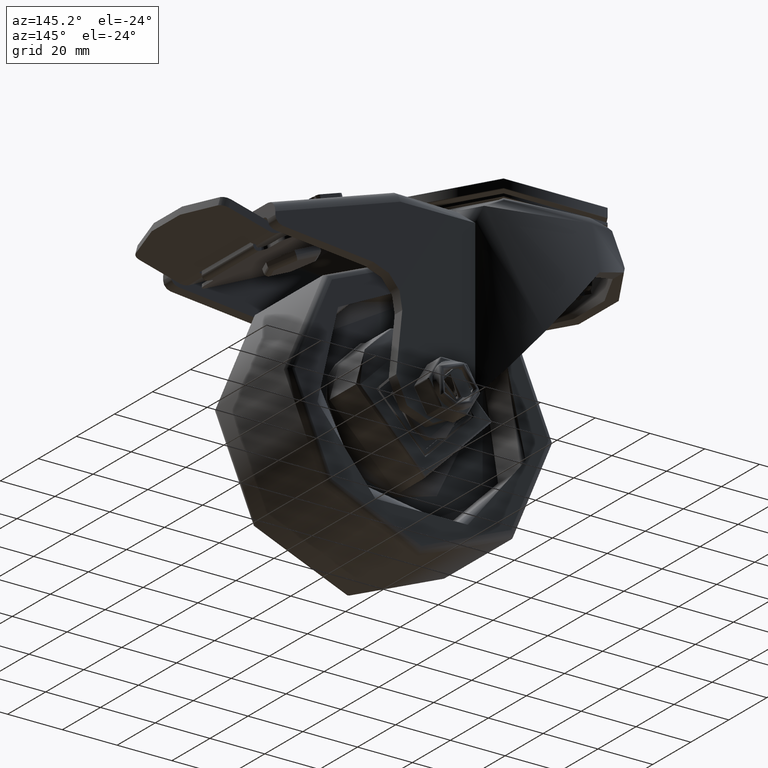
[diagram: clean part render]
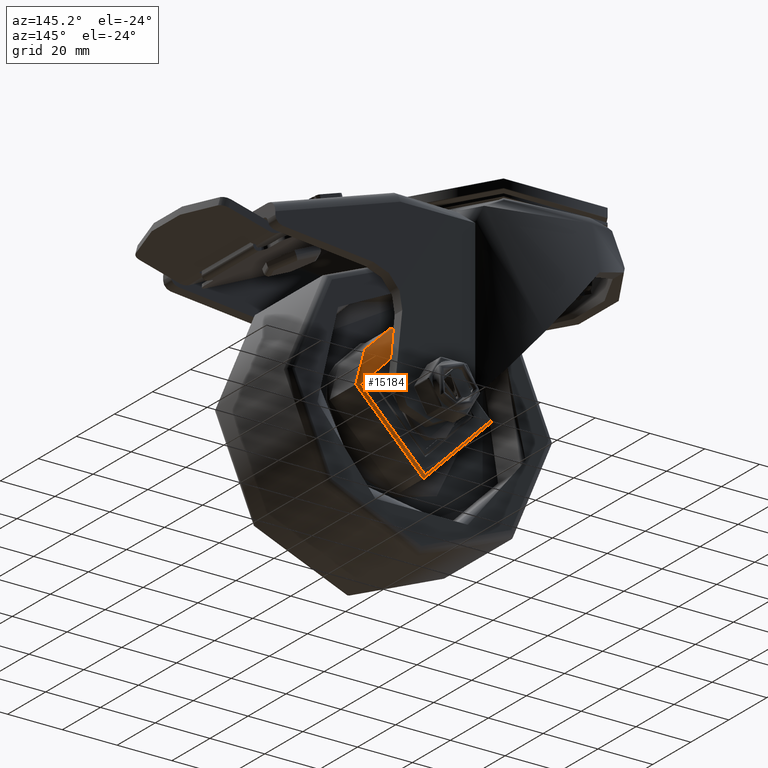
[diagram: same view with one face highlighted and labeled with its STEP entity id]
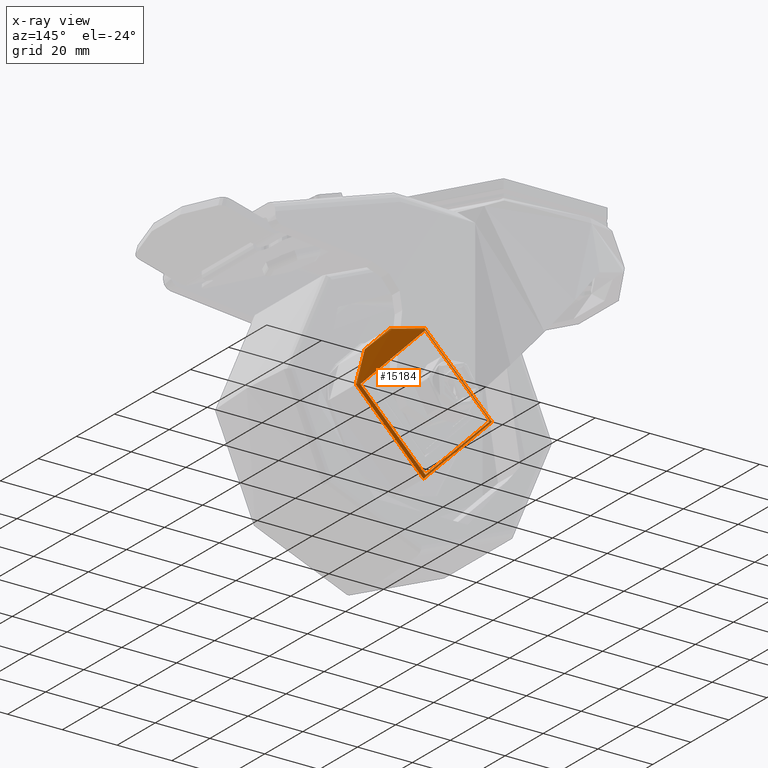
[diagram: x-ray of the same camera — body ghosted, the highlighted face saturated]
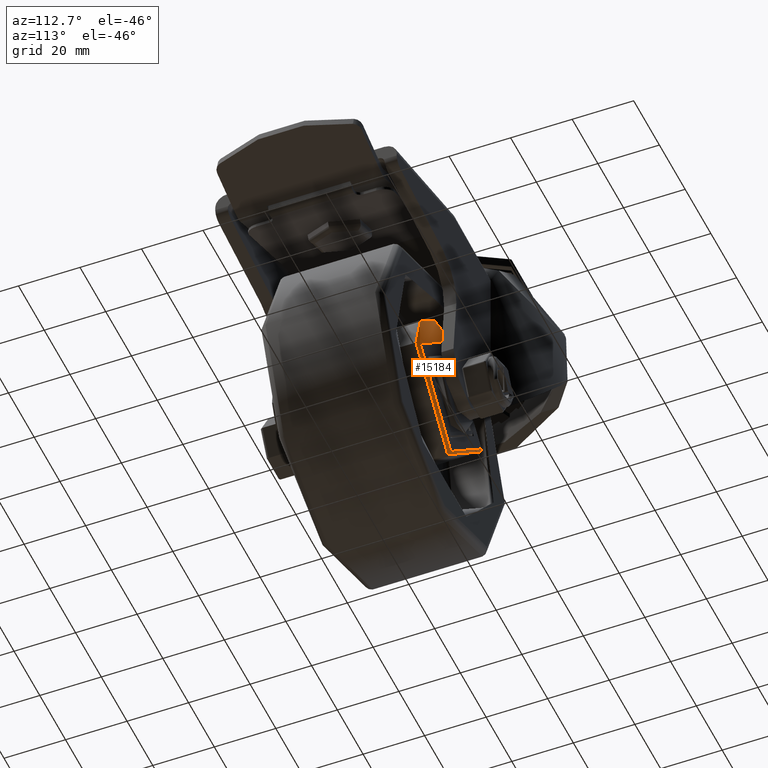
[diagram: same view with one face highlighted and labeled with its STEP entity id]
A machine part, auxiliary view. The second image highlights one B-rep face of the part: STEP entity #15184.
The next image is the same camera in x-ray: the body ghosted, the highlighted face saturated — about 1% of this face is hidden behind the body in this view.
A second angle (auxiliary view) of the same face is appended — the face is thin or edge-on in the first view.
In plain terms, the highlighted toroidal blend (fillet) surface has major radius 23.75 mm and minor (blend) radius 1 mm.
Its self-contained STEP definition (entity closure, byte-faithful):
#1717=TOROIDAL_SURFACE('',#16715,23.75,0.999999999999997);
#2069=FACE_OUTER_BOUND('',#2988,.T.);
#2988=EDGE_LOOP('',(#11980,#11981,#11982,#11983,#11984));
#6134=CIRCLE('',#16716,23.75);
#6135=CIRCLE('',#16717,0.999999999999997);
#6136=CIRCLE('',#16718,24.75);
#6137=CIRCLE('',#16719,24.75);
#7023=VERTEX_POINT('',#24692);
#7024=VERTEX_POINT('',#24694);
#7025=VERTEX_POINT('',#24696);
#8824=EDGE_CURVE('',#7023,#7023,#6134,.T.);
#8825=EDGE_CURVE('',#7023,#7024,#6135,.T.);
#8826=EDGE_CURVE('',#7024,#7025,#6136,.T.);
#8827=EDGE_CURVE('',#7025,#7024,#6137,.T.);
#11980=ORIENTED_EDGE('',*,*,#8824,.F.);
#11981=ORIENTED_EDGE('',*,*,#8825,.T.);
#11982=ORIENTED_EDGE('',*,*,#8826,.T.);
#11983=ORIENTED_EDGE('',*,*,#8827,.T.);
#11984=ORIENTED_EDGE('',*,*,#8825,.F.);
#15184=ADVANCED_FACE('',(#2069),#1717,.T.);
#16715=AXIS2_PLACEMENT_3D('',#24691,#19424,#19425);
#16716=AXIS2_PLACEMENT_3D('',#24693,#19426,#19427);
#16717=AXIS2_PLACEMENT_3D('',#24695,#19428,#19429);
#16718=AXIS2_PLACEMENT_3D('',#24697,#19430,#19431);
#16719=AXIS2_PLACEMENT_3D('',#24698,#19432,#19433);
#19424=DIRECTION('center_axis',(-3.49148336110938E-15,1.,0.));
#19425=DIRECTION('ref_axis',(0.,0.,-1.));
#19426=DIRECTION('center_axis',(-3.49148336110938E-15,1.,0.));
#19427=DIRECTION('ref_axis',(-1.,-3.49148336110938E-15,0.));
#19428=DIRECTION('center_axis',(1.,3.49148336110938E-15,-1.22464679914735E-16));
#19429=DIRECTION('ref_axis',(1.22464679914735E-16,0.,1.));
#19430=DIRECTION('center_axis',(-3.49148336110938E-15,1.,0.));
#19431=DIRECTION('ref_axis',(-1.,-3.49148336110938E-15,0.));
#19432=DIRECTION('center_axis',(-3.49148336110938E-15,1.,0.));
#19433=DIRECTION('ref_axis',(-1.,-3.49148336110938E-15,0.));
#24691=CARTESIAN_POINT('Origin',(-7.3321150583297E-14,21.,0.));
#24692=CARTESIAN_POINT('',(-7.39040977964314E-14,22.,23.75));
#24693=CARTESIAN_POINT('Origin',(-7.68126339444064E-14,22.,0.));
#24694=CARTESIAN_POINT('',(-7.02901497554073E-14,21.,24.75));
#24695=CARTESIAN_POINT('Origin',(-7.0412614435322E-14,21.,23.75));
#24696=CARTESIAN_POINT('',(24.7499999999999,21.0000000000001,3.0310008278897E-15));
#24697=CARTESIAN_POINT('Origin',(-7.3321150583297E-14,21.,0.));
#24698=CARTESIAN_POINT('Origin',(-7.3321150583297E-14,21.,0.));